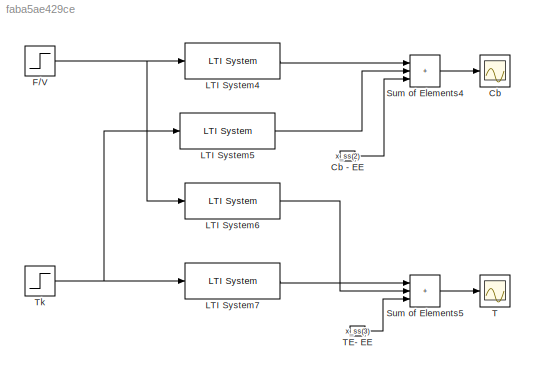
MODEL slx_faba5ae429ce
KIND model
CONFIG AbsTol = auto
CONFIG EnableMultiTasking = off
CONFIG FixedStep = auto
CONFIG MaxStep = 1e-3
CONFIG MinStep = 1e-4
CONFIG RelTol = 1e-3
CONFIG SampleTimeConstraint = Unconstrained
CONFIG SolverName = ode45
CONFIG StartTime = 0.0
CONFIG StopTime = 0.4
BLOCK [Scope] Cb
  Floating = off
  NumInputPorts = 1
  Ports = [1]
  ScopeSpecificationString = Simulink.scopes.TimeScopeBlockCfg('CurrentConfiguration', extmgr.ConfigurationSet(extmgr.Configuration('Core','General UI',true,'FigureColor',[1 1 1]),extmgr.Configuration('Core','Source UI',true),extmgr.Configuration('Sources','WiredSimulink',true,'DataLoggingVariableName','ScopeData1'),extmgr.Configuration('Visuals','Time Domain',true,'SerializedDisplays',{struct('MinYLimReal','-6.44893','MaxYLi...<+1541ch>
BLOCK [Constant] Cb - EE
  Value = x_ss(2)
BLOCK [Step] F//V
  SampleTime = 0
  Time = 0
BLOCK [Reference] LTI System4  REF=cstblocks/LTI System
  Ports = [1, 1]
  SourceBlock = cstblocks/LTI System
  SourceProductBaseCode = CT
  SourceType = LTI Block
BLOCK [Reference] LTI System5  REF=cstblocks/LTI System
  Ports = [1, 1]
  SourceBlock = cstblocks/LTI System
  SourceProductBaseCode = CT
  SourceType = LTI Block
BLOCK [Reference] LTI System6  REF=cstblocks/LTI System
  Ports = [1, 1]
  SourceBlock = cstblocks/LTI System
  SourceProductBaseCode = CT
  SourceType = LTI Block
BLOCK [Reference] LTI System7  REF=cstblocks/LTI System
  Ports = [1, 1]
  SourceBlock = cstblocks/LTI System
  SourceProductBaseCode = CT
  SourceType = LTI Block
BLOCK [Sum] Sum of Elements4
  IconShape = rectangular
  Inputs = +++
  Ports = [3, 1]
BLOCK [Sum] Sum of Elements5
  IconShape = rectangular
  Inputs = +++
  Ports = [3, 1]
BLOCK [Scope] T
  Floating = off
  NumInputPorts = 1
  Ports = [1]
  ScopeSpecificationString = Simulink.scopes.TimeScopeBlockCfg('CurrentConfiguration', extmgr.ConfigurationSet(extmgr.Configuration('Core','General UI',true),extmgr.Configuration('Core','Source UI',true),extmgr.Configuration('Sources','WiredSimulink',true,'DataLoggingVariableName','ScopeData2'),extmgr.Configuration('Visuals','Time Domain',true,'SerializedDisplays',{struct('MinYLimReal','-14.53975','MaxYLimReal','8.87419','YLa...<+1419ch>
BLOCK [Constant] TE- EE
  Value = x_ss(3)
BLOCK [Step] Tk
  After = 0
  SampleTime = 0
  Time = 0
LINE Cb - EE:1 -> Sum of Elements4:3
NET F//V:1 -> LTI System4:1, LTI System6:1
LINE LTI System4:1 -> Sum of Elements4:1
LINE LTI System5:1 -> Sum of Elements4:2
LINE LTI System6:1 -> Sum of Elements5:2
LINE LTI System7:1 -> Sum of Elements5:1
LINE Sum of Elements4:1 -> Cb:1
LINE Sum of Elements5:1 -> T:1
LINE TE- EE:1 -> Sum of Elements5:3
NET Tk:1 -> LTI System5:1, LTI System7:1
note: NET lines group one-source signal fan-out (src -> all destinations, sorted); 1:1 wires keep LINE
